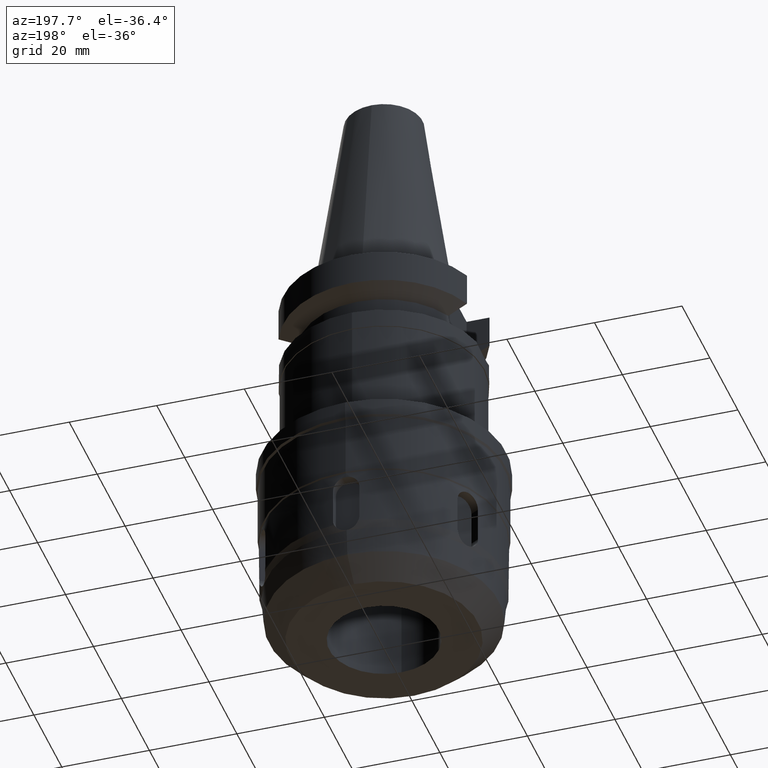
[diagram: clean part render]
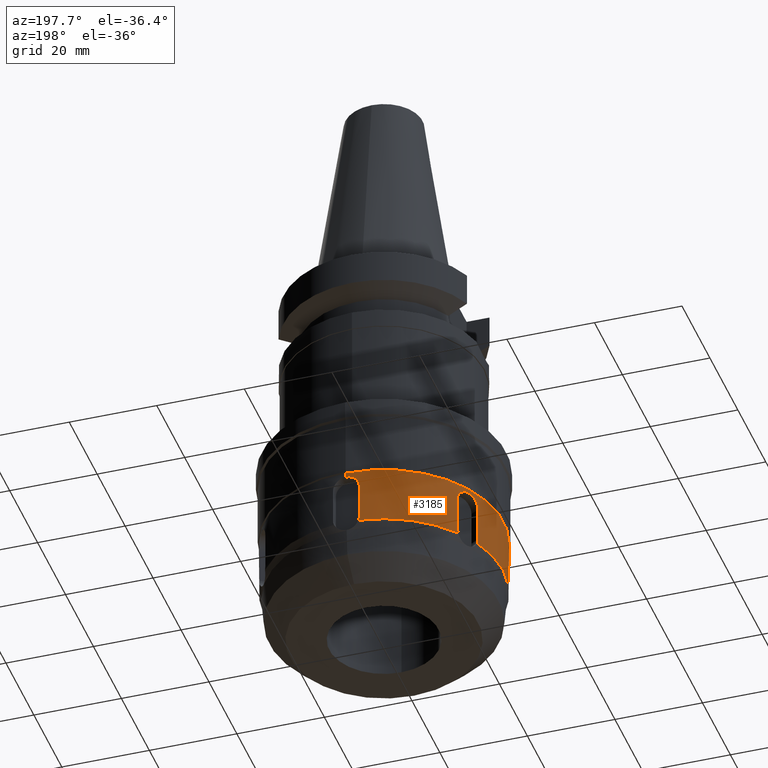
[diagram: same view with one face highlighted and labeled with its STEP entity id]
A machine part, auxiliary view. The second image highlights one B-rep face of the part: STEP entity #3185.
In plain terms, the highlighted cylindrical surface (partial cylindrical patch) has radius 27.25 mm, axis along (0, 0, -1).
Its self-contained STEP definition (entity closure, byte-faithful):
#854=CARTESIAN_POINT('',(0.E0,0.E0,-6.405E1));
#855=DIRECTION('',(0.E0,0.E0,-1.E0));
#856=DIRECTION('',(0.E0,-1.E0,0.E0));
#857=AXIS2_PLACEMENT_3D('',#854,#855,#856);
#862=DIRECTION('',(5.336093433576E-8,2.415908353277E-7,1.E0));
#863=VECTOR('',#862,8.000000000310E0);
#864=CARTESIAN_POINT('',(-2.495574332708E1,1.094410133339E1,-7.610000000031E1));
#865=LINE('',#864,#863);
#869=CARTESIAN_POINT('',(-2.495574290019E1,1.094410326612E1,-6.81E1));
#870=CARTESIAN_POINT('',(-2.495574290019E1,1.094410326612E1,-6.783339491146E1));
#871=CARTESIAN_POINT('',(-2.492827473837E1,1.100706545205E1,-6.731981675750E1));
#872=CARTESIAN_POINT('',(-2.480421418777E1,1.128561810743E1,-6.658270427342E1));
#873=CARTESIAN_POINT('',(-2.460073827160E1,1.172472991556E1,-6.595570505105E1));
#874=CARTESIAN_POINT('',(-2.432503261535E1,1.228886143710E1,-6.547298011884E1));
#875=CARTESIAN_POINT('',(-2.398297056065E1,1.294499235440E1,-6.516823284882E1));
#876=CARTESIAN_POINT('',(-2.373255652052E1,1.339400631299E1,-6.509999999978E1));
#877=CARTESIAN_POINT('',(-2.359919225314E1,1.362500000001E1,-6.509999999978E1));
#882=CARTESIAN_POINT('',(-2.359919225314E1,1.362500000001E1,-6.509999999978E1));
#883=CARTESIAN_POINT('',(-2.346607175889E1,1.385557145959E1,-6.509999999978E1));
#884=CARTESIAN_POINT('',(-2.320285693432E1,1.429622450192E1,-6.516809523993E1));
#885=CARTESIAN_POINT('',(-2.280692995046E1,1.491867604097E1,-6.547107033230E1));
#886=CARTESIAN_POINT('',(-2.245578194488E1,1.544033911994E1,-6.595298454548E1));
#887=CARTESIAN_POINT('',(-2.217660924138E1,1.583706071118E1,-6.657997353707E1));
#888=CARTESIAN_POINT('',(-2.199672764274E1,1.608472804854E1,-6.731809778875E1));
#889=CARTESIAN_POINT('',(-2.195574290019E1,1.614025568882E1,-6.783274051862E1));
#890=CARTESIAN_POINT('',(-2.195574290019E1,1.614025568882E1,-6.81E1));
#895=DIRECTION('',(4.602295068454E-6,-2.361101176149E-6,-9.999999999866E-1));
#896=VECTOR('',#895,8.000000017238E0);
#897=CARTESIAN_POINT('',(-2.195574290019E1,1.614025568882E1,-6.81E1));
#898=LINE('',#897,#896);
#902=CARTESIAN_POINT('',(-2.195570608183E1,1.614023680001E1,-7.610000001713E1));
#903=CARTESIAN_POINT('',(-2.195570608183E1,1.614023680001E1,-7.623807903910E1));
#904=CARTESIAN_POINT('',(-2.196699864038E1,1.612499401789E1,-7.651113272512E1));
#905=CARTESIAN_POINT('',(-2.201719082667E1,1.605644757377E1,-7.691597933008E1));
#906=CARTESIAN_POINT('',(-2.207154705809E1,1.598162731394E1,-7.717356345518E1));
#907=CARTESIAN_POINT('',(-2.210398374148E1,1.593663786832E1,-7.729999818931E1));
#912=CARTESIAN_POINT('',(-2.749616139962E0,2.711096480771E1,-7.729982686523E1));
#913=CARTESIAN_POINT('',(-2.804772840992E0,2.710537093647E1,-7.717338183965E1));
#914=CARTESIAN_POINT('',(-2.896671634615E0,2.709565866682E1,-7.691606415115E1));
#915=CARTESIAN_POINT('',(-2.981160689295E0,2.708646192658E1,-7.651110858435E1));
#916=CARTESIAN_POINT('',(-3.000001898694E0,2.708435835465E1,-7.623807908290E1));
#917=CARTESIAN_POINT('',(-3.000001898694E0,2.708435835465E1,-7.610000000031E1));
#922=DIRECTION('',(2.373367484672E-7,7.503638599067E-8,1.E0));
#923=VECTOR('',#922,8.000000000312E0);
#924=CARTESIAN_POINT('',(-3.000001898694E0,2.708435835465E1,-7.610000000031E1));
#925=LINE('',#924,#923);
#929=CARTESIAN_POINT('',(-3.E0,2.708435895494E1,-6.81E1));
#930=CARTESIAN_POINT('',(-3.E0,2.708435895494E1,-6.783334378049E1));
#931=CARTESIAN_POINT('',(-2.931712339869E0,2.709205529024E1,-6.731971316266E1));
#932=CARTESIAN_POINT('',(-2.628476703434E0,2.712388670829E1,-6.658276503248E1));
#933=CARTESIAN_POINT('',(-2.146681425354E0,2.716721397327E1,-6.595589011286E1));
#934=CARTESIAN_POINT('',(-1.520077481005E0,2.721051701707E1,-6.547308945457E1));
#935=CARTESIAN_POINT('',(-7.823653576951E-1,2.724230751191E1,
-6.516869934518E1));
#936=CARTESIAN_POINT('',(-2.674032770454E-1,2.725E1,-6.51E1));
#937=CARTESIAN_POINT('',(4.583643957037E-14,2.725E1,-6.51E1));
#942=DIRECTION('',(3.057258738888E-14,0.E0,-1.E0));
#943=VECTOR('',#942,1.05E0);
#944=CARTESIAN_POINT('',(0.E0,-2.725E1,-6.405E1));
#945=LINE('',#944,#943);
#949=CARTESIAN_POINT('',(3.210121675832E-14,-2.725E1,-6.51E1));
#950=CARTESIAN_POINT('',(-2.665352363440E-1,-2.725E1,-6.51E1));
#951=CARTESIAN_POINT('',(-7.801480207774E-1,-2.724235775390E1,
-6.516825521636E1));
#952=CARTESIAN_POINT('',(-1.516993902191E0,-2.721068700765E1,
-6.547139378359E1));
#953=CARTESIAN_POINT('',(-2.143893029772E0,-2.716743978952E1,
-6.595310330842E1));
#954=CARTESIAN_POINT('',(-2.626777430197E0,-2.712405776640E1,
-6.657967310733E1));
#955=CARTESIAN_POINT('',(-2.931273022118E0,-2.709210533039E1,
-6.731751022184E1));
#956=CARTESIAN_POINT('',(-3.E0,-2.708435895494E1,-6.783248169058E1));
#957=CARTESIAN_POINT('',(-3.E0,-2.708435895494E1,-6.81E1));
#962=DIRECTION('',(-2.577294135328E-7,5.166683644888E-6,-9.999999999866E-1));
#963=VECTOR('',#962,8.000000017240E0);
#964=CARTESIAN_POINT('',(-3.E0,-2.708435895494E1,-6.81E1));
#965=LINE('',#964,#963);
#969=CARTESIAN_POINT('',(-3.000002061835E0,-2.708431762147E1,
-7.610000001713E1));
#970=CARTESIAN_POINT('',(-3.000002061835E0,-2.708431762147E1,
-7.623807903915E1));
#971=CARTESIAN_POINT('',(-2.981155180189E0,-2.708647587279E1,
-7.651113272623E1));
#972=CARTESIAN_POINT('',(-2.896696045334E0,-2.709567036530E1,
-7.691597930971E1));
#973=CARTESIAN_POINT('',(-2.804721697845E0,-2.710533411423E1,
-7.717356345690E1));
#974=CARTESIAN_POINT('',(-2.749541346109E0,-2.711093038385E1,
-7.729999820260E1));
#979=CARTESIAN_POINT('',(-2.210397565190E1,-1.593672057286E1,
-7.729982485042E1));
#980=CARTESIAN_POINT('',(-2.207155303324E1,-1.598169051041E1,
-7.717337971606E1));
#981=CARTESIAN_POINT('',(-2.201719305769E1,-1.605642035766E1,
-7.691606516373E1));
#982=CARTESIAN_POINT('',(-2.196698376358E1,-1.612499187998E1,
-7.651110830037E1));
#983=CARTESIAN_POINT('',(-2.195574143984E1,-1.614025702488E1,
-7.623807908290E1));
#984=CARTESIAN_POINT('',(-2.195574143984E1,-1.614025702488E1,
-7.610000000031E1));
#989=DIRECTION('',(-1.825433160114E-7,1.670073261841E-7,1.E0));
#990=VECTOR('',#989,8.000000000310E0);
#991=CARTESIAN_POINT('',(-2.195574143984E1,-1.614025702488E1,
-7.610000000031E1));
#992=LINE('',#991,#990);
#996=CARTESIAN_POINT('',(-2.195574290019E1,-1.614025568882E1,-6.81E1));
#997=CARTESIAN_POINT('',(-2.195574290019E1,-1.614025568882E1,
-6.783359101558E1));
#998=CARTESIAN_POINT('',(-2.199646845312E1,-1.608507833934E1,
-6.732027147926E1));
#999=CARTESIAN_POINT('',(-2.217562460790E1,-1.583842851288E1,
-6.658302600600E1));
#1000=CARTESIAN_POINT('',(-2.245421141910E1,-1.544261309826E1,
-6.595573814096E1));
#1001=CARTESIAN_POINT('',(-2.280525934683E1,-1.492123357738E1,
-6.547274579634E1));
#1002=CARTESIAN_POINT('',(-2.320172490551E1,-1.429808687829E1,
-6.516852984153E1));
#1003=CARTESIAN_POINT('',(-2.346564552268E1,-1.385630972239E1,
-6.509999999961E1));
#1004=CARTESIAN_POINT('',(-2.359919225316E1,-1.362500000002E1,
-6.509999999961E1));
#1009=CARTESIAN_POINT('',(-2.359919225316E1,-1.362500000002E1,
-6.509999999961E1));
#1010=CARTESIAN_POINT('',(-2.373215680593E1,-1.339469863901E1,
-6.509999999961E1));
#1011=CARTESIAN_POINT('',(-2.398193203640E1,-1.294687815269E1,
-6.516785269667E1));
#1012=CARTESIAN_POINT('',(-2.432329541235E1,-1.229228008295E1,
-6.547095440217E1));
#1013=CARTESIAN_POINT('',(-2.459902036782E1,-1.172834465774E1,
-6.595180415430E1));
#1014=CARTESIAN_POINT('',(-2.480306402353E1,-1.128816675186E1,
-6.657778147116E1));
#1015=CARTESIAN_POINT('',(-2.492793457169E1,-1.100784678080E1,
-6.731578790558E1));
#1016=CARTESIAN_POINT('',(-2.495574290019E1,-1.094410326612E1,
-6.783177816638E1));
#1017=CARTESIAN_POINT('',(-2.495574290019E1,-1.094410326612E1,-6.81E1));
#1022=DIRECTION('',(4.345921238841E-6,2.805153965952E-6,-9.999999999866E-1));
#1023=VECTOR('',#1022,8.000000017238E0);
#1024=CARTESIAN_POINT('',(-2.495574290019E1,-1.094410326612E1,-6.81E1));
#1025=LINE('',#1024,#1023);
#1029=CARTESIAN_POINT('',(-2.495570813282E1,-1.094408082489E1,
-7.610000001713E1));
#1030=CARTESIAN_POINT('',(-2.495570813282E1,-1.094408082489E1,
-7.623807903910E1));
#1031=CARTESIAN_POINT('',(-2.494815377555E1,-1.096148185853E1,
-7.651113272515E1));
#1032=CARTESIAN_POINT('',(-2.491388690676E1,-1.103922278896E1,
-7.691597932998E1));
#1033=CARTESIAN_POINT('',(-2.487626877671E1,-1.112370679621E1,
-7.717356345539E1));
#1034=CARTESIAN_POINT('',(-2.485352511558E1,-1.117429251088E1,
-7.729999818951E1));
#1039=CARTESIAN_POINT('',(-2.485359268295E1,1.117424417877E1,
-7.729982491597E1));
#1040=CARTESIAN_POINT('',(-2.487632648566E1,1.112368039030E1,
-7.717337978558E1));
#1041=CARTESIAN_POINT('',(-2.491386445634E1,1.103923832087E1,
-7.691606513129E1));
#1042=CARTESIAN_POINT('',(-2.494814448456E1,1.096147004616E1,
-7.651110830964E1));
#1043=CARTESIAN_POINT('',(-2.495574332708E1,1.094410133339E1,
-7.623807908290E1));
#1044=CARTESIAN_POINT('',(-2.495574332708E1,1.094410133339E1,
-7.610000000031E1));
#1063=CARTESIAN_POINT('',(-2.210398374148E1,1.593663786832E1,
-7.729999818931E1));
#1074=CARTESIAN_POINT('',(-2.485359268295E1,1.117424417877E1,
-7.729982491597E1));
#1079=CARTESIAN_POINT('',(0.E0,0.E0,-7.73E1));
#1080=DIRECTION('',(0.E0,0.E0,1.E0));
#1081=DIRECTION('',(-9.120557971521E-1,4.100661201334E-1,0.E0));
#1082=AXIS2_PLACEMENT_3D('',#1079,#1080,#1081);
#1098=CARTESIAN_POINT('',(-2.210397565190E1,-1.593672057286E1,
-7.729982485042E1));
#1103=CARTESIAN_POINT('',(0.E0,0.E0,-7.73E1));
#1104=DIRECTION('',(0.E0,0.E0,1.E0));
#1105=DIRECTION('',(-8.111555758429E-1,-5.848304299359E-1,0.E0));
#1106=AXIS2_PLACEMENT_3D('',#1103,#1104,#1105);
#1111=CARTESIAN_POINT('',(-2.749541346109E0,-2.711093038385E1,
-7.729999820260E1));
#1145=CARTESIAN_POINT('',(-2.749616139962E0,2.711096480771E1,
-7.729982686523E1));
#1150=CARTESIAN_POINT('',(0.E0,0.E0,-7.73E1));
#1151=DIRECTION('',(0.E0,0.E0,1.E0));
#1152=DIRECTION('',(-1.009002186315E-1,9.948965503408E-1,0.E0));
#1153=AXIS2_PLACEMENT_3D('',#1150,#1151,#1152);
#1353=DIRECTION('',(2.636599344547E-14,0.E0,-1.E0));
#1354=VECTOR('',#1353,1.05E0);
#1355=CARTESIAN_POINT('',(1.815214645262E-14,2.725E1,-6.405E1));
#1356=LINE('',#1355,#1354);
#2265=VERTEX_POINT('',#1111);
#2266=VERTEX_POINT('',#969);
#2275=VERTEX_POINT('',#1063);
#2276=VERTEX_POINT('',#1074);
#2277=CARTESIAN_POINT('',(-2.485352042584E1,-1.117430187718E1,-7.73E1));
#2278=VERTEX_POINT('',#2277);
#2279=VERTEX_POINT('',#1098);
#2280=VERTEX_POINT('',#1145);
#2281=VERTEX_POINT('',#902);
#2288=CARTESIAN_POINT('',(-2.495574332708E1,1.094410133339E1,
-7.610000000031E1));
#2289=VERTEX_POINT('',#2288);
#2290=CARTESIAN_POINT('',(-2.495574290019E1,1.094410326612E1,-6.81E1));
#2291=VERTEX_POINT('',#2290);
#2292=VERTEX_POINT('',#882);
#2293=VERTEX_POINT('',#890);
#2294=VERTEX_POINT('',#917);
#2295=CARTESIAN_POINT('',(-3.E0,2.708435895494E1,-6.81E1));
#2296=VERTEX_POINT('',#2295);
#2297=VERTEX_POINT('',#937);
#2298=CARTESIAN_POINT('',(1.815214645262E-14,2.725E1,-6.405E1));
#2299=VERTEX_POINT('',#2298);
#2300=CARTESIAN_POINT('',(0.E0,-2.725E1,-6.405E1));
#2301=VERTEX_POINT('',#2300);
#2302=CARTESIAN_POINT('',(3.210121675832E-14,-2.725E1,-6.51E1));
#2303=VERTEX_POINT('',#2302);
#2304=VERTEX_POINT('',#957);
#2305=VERTEX_POINT('',#984);
#2306=CARTESIAN_POINT('',(-2.195574290019E1,-1.614025568882E1,-6.81E1));
#2307=VERTEX_POINT('',#2306);
#2308=VERTEX_POINT('',#1009);
#2309=VERTEX_POINT('',#1017);
#2310=CARTESIAN_POINT('',(-2.495570813282E1,-1.094408082489E1,
-7.610000001713E1));
#2311=VERTEX_POINT('',#2310);
#3131=CARTESIAN_POINT('',(0.E0,1.902121408436E-14,5.532E1));
#3132=DIRECTION('',(0.E0,0.E0,-1.E0));
#3133=DIRECTION('',(0.E0,-1.E0,0.E0));
#3134=AXIS2_PLACEMENT_3D('',#3131,#3132,#3133);
#3135=CYLINDRICAL_SURFACE('',#3134,2.725E1);
#3137=ORIENTED_EDGE('',*,*,#3136,.T.);
#3139=ORIENTED_EDGE('',*,*,#3138,.T.);
#3141=ORIENTED_EDGE('',*,*,#3140,.T.);
#3143=ORIENTED_EDGE('',*,*,#3142,.T.);
#3145=ORIENTED_EDGE('',*,*,#3144,.T.);
#3147=ORIENTED_EDGE('',*,*,#3146,.F.);
#3149=ORIENTED_EDGE('',*,*,#3148,.T.);
#3151=ORIENTED_EDGE('',*,*,#3150,.T.);
#3153=ORIENTED_EDGE('',*,*,#3152,.T.);
#3155=ORIENTED_EDGE('',*,*,#3154,.F.);
#3156=ORIENTED_EDGE('',*,*,#3126,.F.);
#3158=ORIENTED_EDGE('',*,*,#3157,.T.);
#3160=ORIENTED_EDGE('',*,*,#3159,.T.);
#3162=ORIENTED_EDGE('',*,*,#3161,.T.);
#3164=ORIENTED_EDGE('',*,*,#3163,.T.);
#3166=ORIENTED_EDGE('',*,*,#3165,.F.);
#3168=ORIENTED_EDGE('',*,*,#3167,.T.);
#3170=ORIENTED_EDGE('',*,*,#3169,.T.);
#3172=ORIENTED_EDGE('',*,*,#3171,.T.);
#3174=ORIENTED_EDGE('',*,*,#3173,.T.);
#3176=ORIENTED_EDGE('',*,*,#3175,.T.);
#3178=ORIENTED_EDGE('',*,*,#3177,.T.);
#3180=ORIENTED_EDGE('',*,*,#3179,.F.);
#3182=ORIENTED_EDGE('',*,*,#3181,.T.);
#3183=EDGE_LOOP('',(#3137,#3139,#3141,#3143,#3145,#3147,#3149,#3151,#3153,#3155,
#3156,#3158,#3160,#3162,#3164,#3166,#3168,#3170,#3172,#3174,#3176,#3178,#3180,
#3182));
#3184=FACE_OUTER_BOUND('',#3183,.F.);
#858=CIRCLE('',#857,2.725E1);
#878=B_SPLINE_CURVE_WITH_KNOTS('',3,(#869,#870,#871,#872,#873,#874,#875,#876,
#877),.UNSPECIFIED.,.F.,.F.,(4,1,1,1,1,1,4),(0.E0,1.666666666667E-1,
3.333333333333E-1,5.E-1,6.666666666667E-1,8.333333333333E-1,1.E0),
.UNSPECIFIED.);
#891=B_SPLINE_CURVE_WITH_KNOTS('',3,(#882,#883,#884,#885,#886,#887,#888,#889,
#890),.UNSPECIFIED.,.F.,.F.,(4,1,1,1,1,1,4),(0.E0,1.666666666667E-1,
3.333333333333E-1,5.E-1,6.666666666667E-1,8.333333333333E-1,1.E0),
.UNSPECIFIED.);
#908=B_SPLINE_CURVE_WITH_KNOTS('',3,(#902,#903,#904,#905,#906,#907),
.UNSPECIFIED.,.F.,.F.,(4,1,1,4),(0.E0,3.333333333333E-1,6.666666666667E-1,1.E0),
.UNSPECIFIED.);
#918=B_SPLINE_CURVE_WITH_KNOTS('',3,(#912,#913,#914,#915,#916,#917),
.UNSPECIFIED.,.F.,.F.,(4,1,1,4),(0.E0,3.333333333333E-1,6.666666666667E-1,1.E0),
.UNSPECIFIED.);
#938=B_SPLINE_CURVE_WITH_KNOTS('',3,(#929,#930,#931,#932,#933,#934,#935,#936,
#937),.UNSPECIFIED.,.F.,.F.,(4,1,1,1,1,1,4),(0.E0,1.666666666667E-1,
3.333333333333E-1,5.E-1,6.666666666667E-1,8.333333333333E-1,1.E0),
.UNSPECIFIED.);
#958=B_SPLINE_CURVE_WITH_KNOTS('',3,(#949,#950,#951,#952,#953,#954,#955,#956,
#957),.UNSPECIFIED.,.F.,.F.,(4,1,1,1,1,1,4),(0.E0,1.666666666667E-1,
3.333333333333E-1,5.E-1,6.666666666667E-1,8.333333333333E-1,1.E0),
.UNSPECIFIED.);
#975=B_SPLINE_CURVE_WITH_KNOTS('',3,(#969,#970,#971,#972,#973,#974),
.UNSPECIFIED.,.F.,.F.,(4,1,1,4),(0.E0,3.333333333333E-1,6.666666666667E-1,1.E0),
.UNSPECIFIED.);
#985=B_SPLINE_CURVE_WITH_KNOTS('',3,(#979,#980,#981,#982,#983,#984),
.UNSPECIFIED.,.F.,.F.,(4,1,1,4),(0.E0,3.333333333333E-1,6.666666666667E-1,1.E0),
.UNSPECIFIED.);
#1005=B_SPLINE_CURVE_WITH_KNOTS('',3,(#996,#997,#998,#999,#1000,#1001,#1002,
#1003,#1004),.UNSPECIFIED.,.F.,.F.,(4,1,1,1,1,1,4),(0.E0,1.666666666667E-1,
3.333333333333E-1,5.E-1,6.666666666667E-1,8.333333333333E-1,1.E0),
.UNSPECIFIED.);
#1018=B_SPLINE_CURVE_WITH_KNOTS('',3,(#1009,#1010,#1011,#1012,#1013,#1014,#1015,
#1016,#1017),.UNSPECIFIED.,.F.,.F.,(4,1,1,1,1,1,4),(0.E0,1.666666666667E-1,
3.333333333333E-1,5.E-1,6.666666666667E-1,8.333333333333E-1,1.E0),
.UNSPECIFIED.);
#1035=B_SPLINE_CURVE_WITH_KNOTS('',3,(#1029,#1030,#1031,#1032,#1033,#1034),
.UNSPECIFIED.,.F.,.F.,(4,1,1,4),(0.E0,3.333333333333E-1,6.666666666667E-1,1.E0),
.UNSPECIFIED.);
#1045=B_SPLINE_CURVE_WITH_KNOTS('',3,(#1039,#1040,#1041,#1042,#1043,#1044),
.UNSPECIFIED.,.F.,.F.,(4,1,1,4),(0.E0,3.333333333333E-1,6.666666666667E-1,1.E0),
.UNSPECIFIED.);
#1083=CIRCLE('',#1082,2.725E1);
#1107=CIRCLE('',#1106,2.725E1);
#1154=CIRCLE('',#1153,2.725E1);
#3126=EDGE_CURVE('',#2301,#2299,#858,.T.);
#3136=EDGE_CURVE('',#2289,#2291,#865,.T.);
#3138=EDGE_CURVE('',#2291,#2292,#878,.T.);
#3140=EDGE_CURVE('',#2292,#2293,#891,.T.);
#3142=EDGE_CURVE('',#2293,#2281,#898,.T.);
#3144=EDGE_CURVE('',#2281,#2275,#908,.T.);
#3146=EDGE_CURVE('',#2280,#2275,#1154,.T.);
#3148=EDGE_CURVE('',#2280,#2294,#918,.T.);
#3150=EDGE_CURVE('',#2294,#2296,#925,.T.);
#3152=EDGE_CURVE('',#2296,#2297,#938,.T.);
#3154=EDGE_CURVE('',#2299,#2297,#1356,.T.);
#3157=EDGE_CURVE('',#2301,#2303,#945,.T.);
#3159=EDGE_CURVE('',#2303,#2304,#958,.T.);
#3161=EDGE_CURVE('',#2304,#2266,#965,.T.);
#3163=EDGE_CURVE('',#2266,#2265,#975,.T.);
#3165=EDGE_CURVE('',#2279,#2265,#1107,.T.);
#3167=EDGE_CURVE('',#2279,#2305,#985,.T.);
#3169=EDGE_CURVE('',#2305,#2307,#992,.T.);
#3171=EDGE_CURVE('',#2307,#2308,#1005,.T.);
#3173=EDGE_CURVE('',#2308,#2309,#1018,.T.);
#3175=EDGE_CURVE('',#2309,#2311,#1025,.T.);
#3177=EDGE_CURVE('',#2311,#2278,#1035,.T.);
#3179=EDGE_CURVE('',#2276,#2278,#1083,.T.);
#3181=EDGE_CURVE('',#2276,#2289,#1045,.T.);
#3185=ADVANCED_FACE('',(#3184),#3135,.T.);